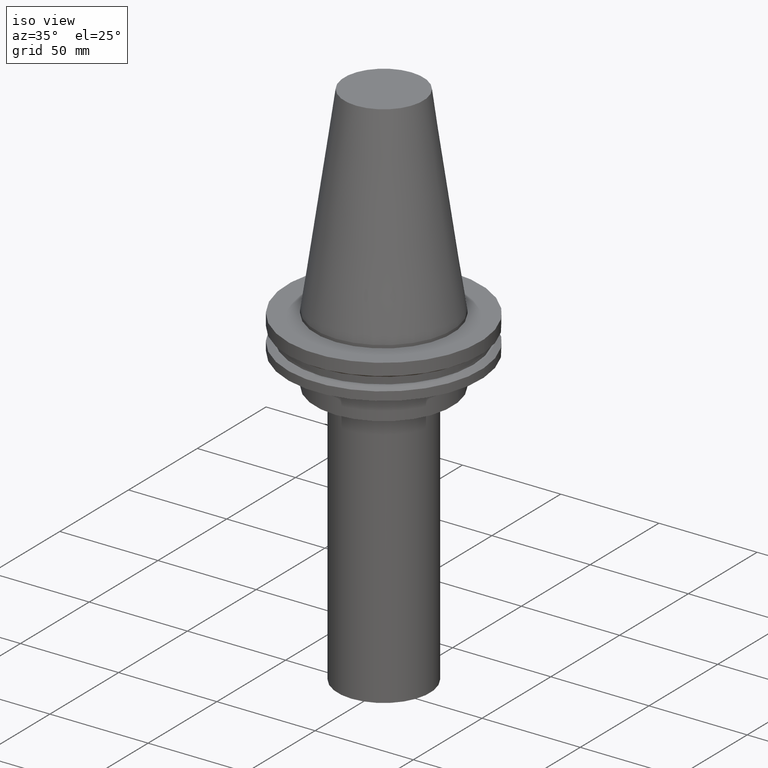
[diagram: clean part render]
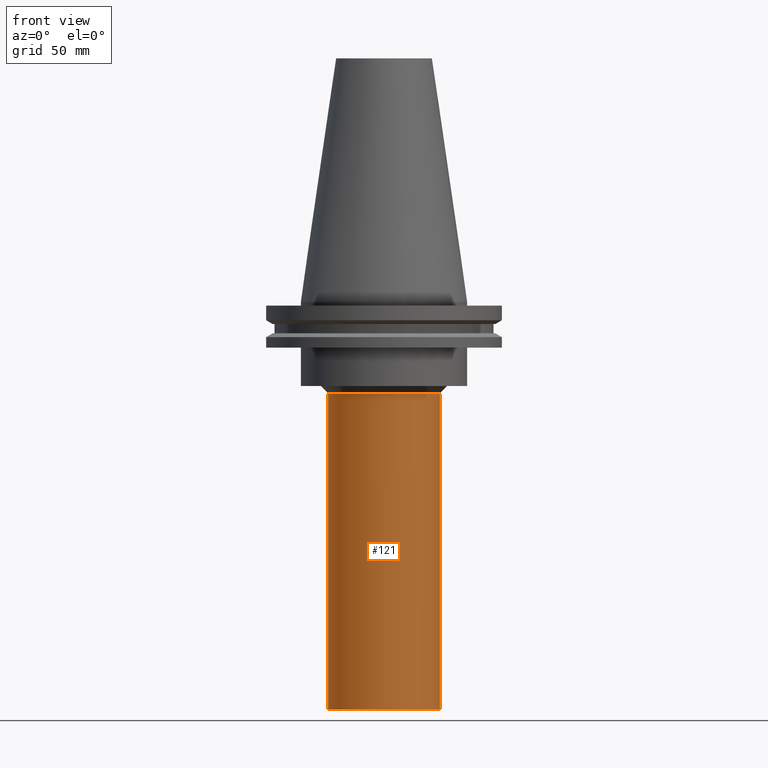
[diagram: tour spotlight — one face highlighted and labeled with its STEP entity id]
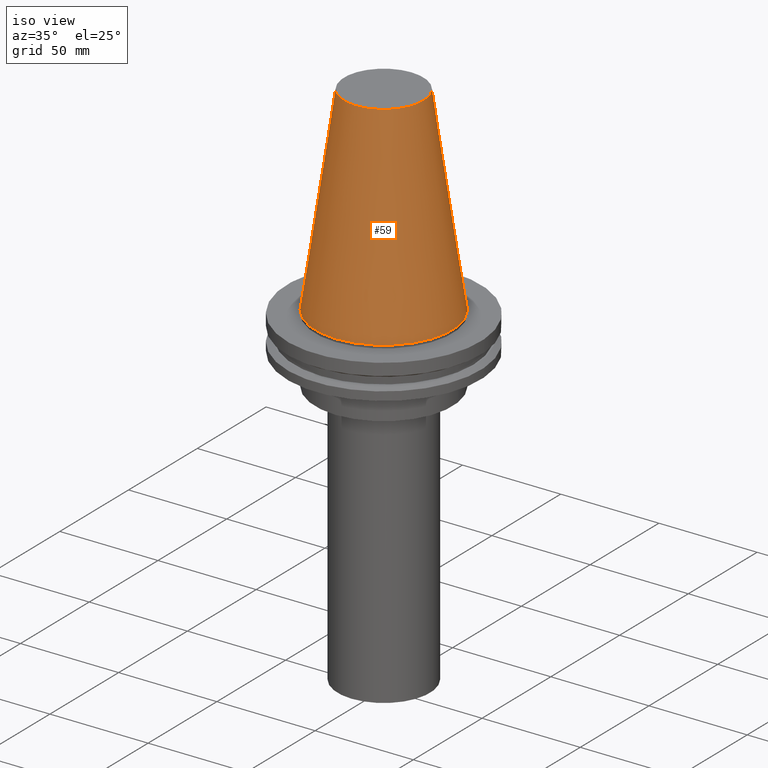
[diagram: tour spotlight — one face highlighted and labeled with its STEP entity id]
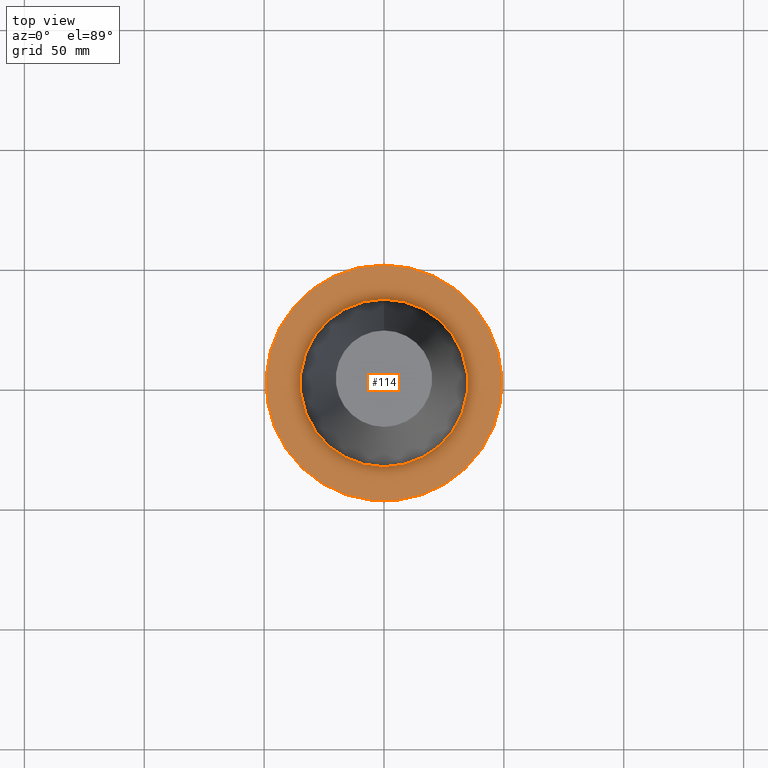
[diagram: tour spotlight — one face highlighted and labeled with its STEP entity id]
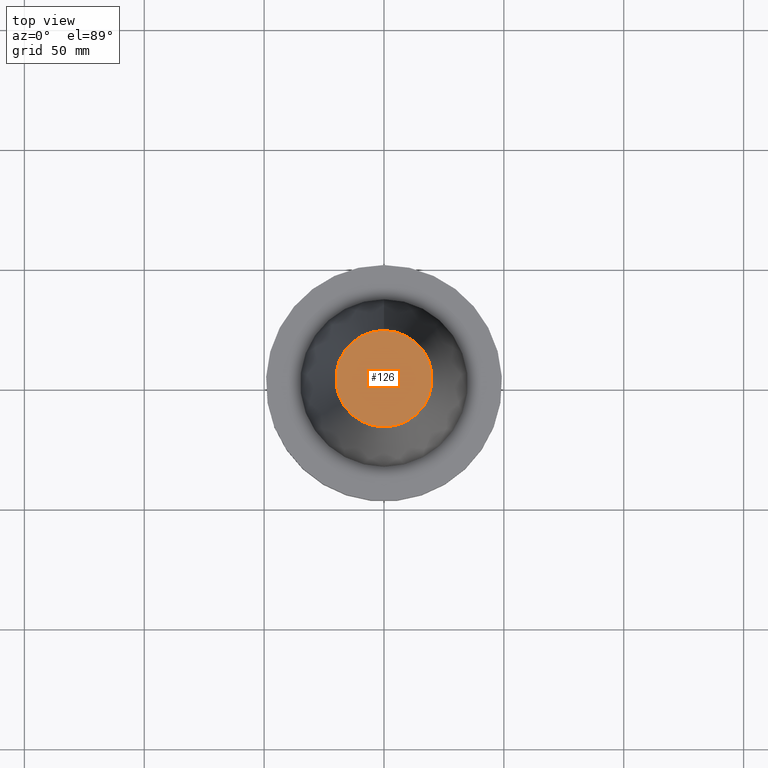
[diagram: tour spotlight — one face highlighted and labeled with its STEP entity id]
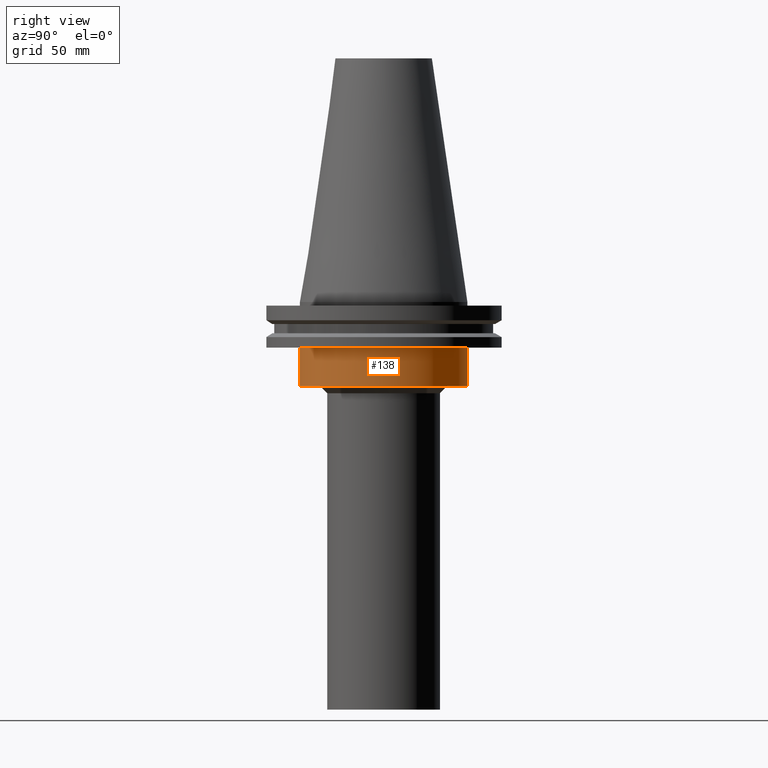
[diagram: tour spotlight — one face highlighted and labeled with its STEP entity id]
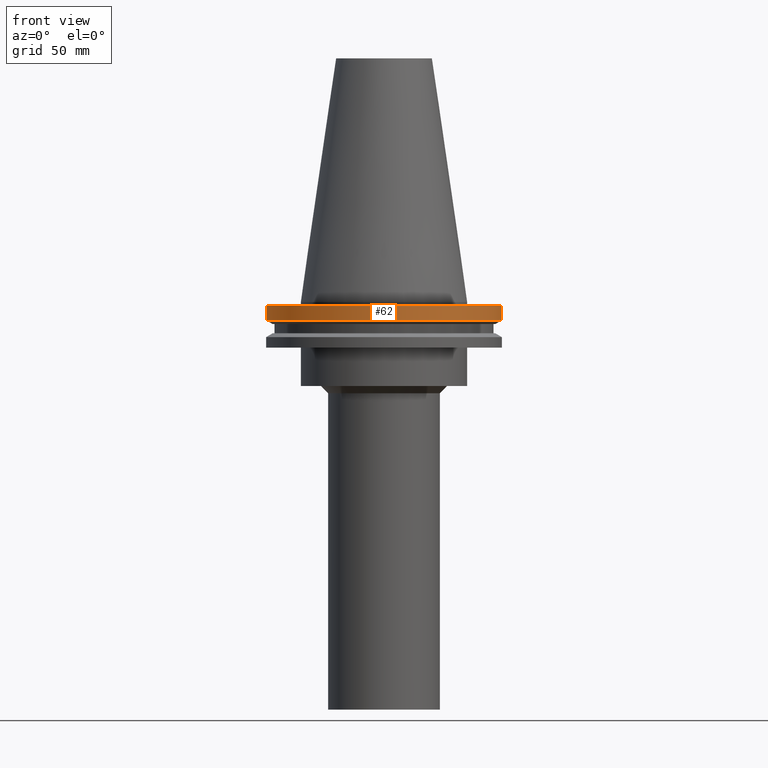
[diagram: tour spotlight — one face highlighted and labeled with its STEP entity id]
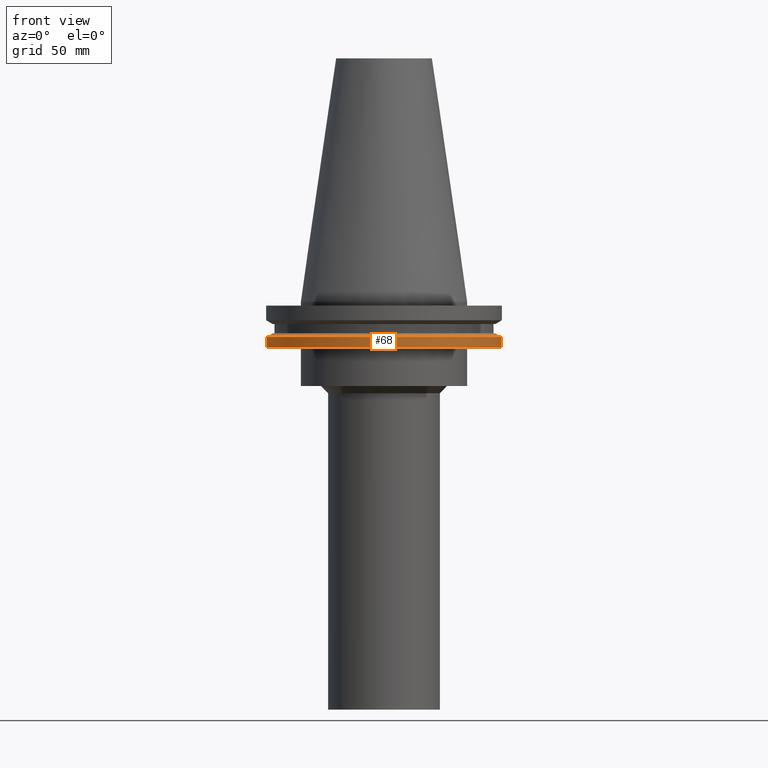
[diagram: tour spotlight — one face highlighted and labeled with its STEP entity id]
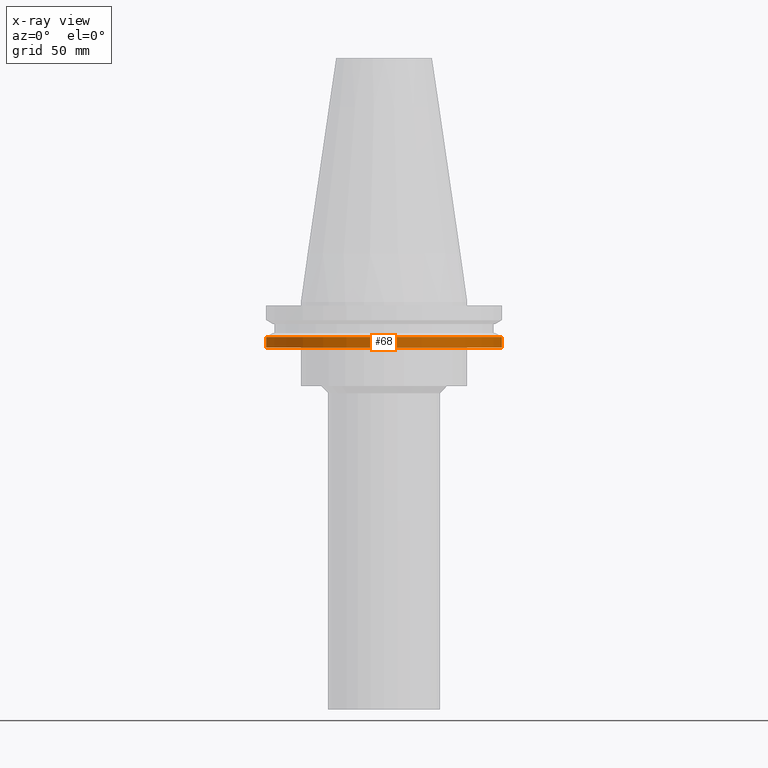
[diagram: x-ray of the same camera — body ghosted, this tour face saturated]
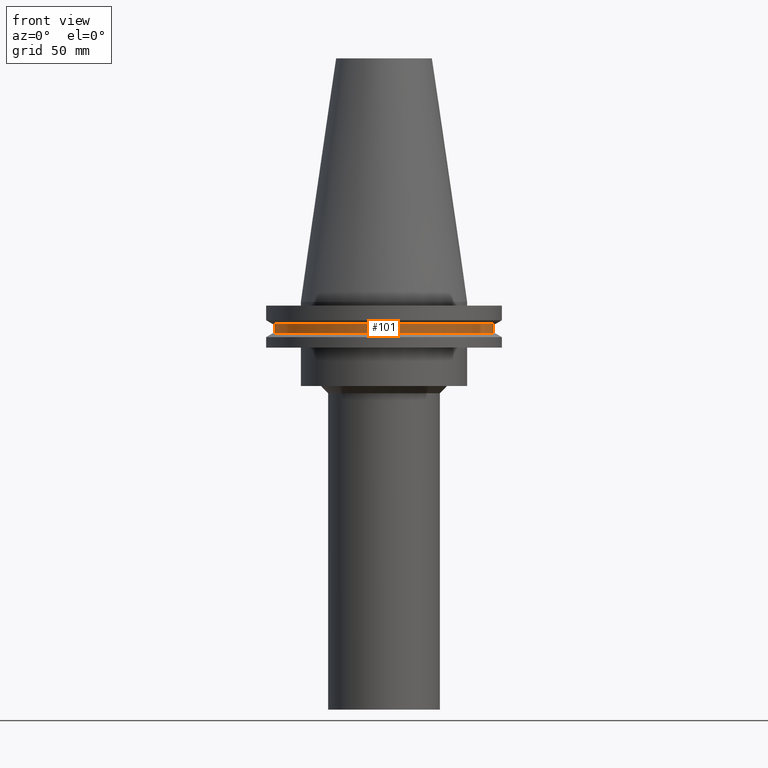
[diagram: tour spotlight — one face highlighted and labeled with its STEP entity id]
A machine part: a face-by-face anatomy tour. The part has 17 B-rep faces; the first image is the clean iso view, then the 8 largest visible faces are spotlighted one at a time (largest first), each with its STEP entity span.

Face 1 — front view, entity #121. In plain terms, the highlighted cylindrical surface (bore or boss wall) has radius 23.5 mm, axis along (0, 0, -1).
Definition (entity closure, byte-faithful):
#121=ADVANCED_FACE('Unnamed[1]',(#257,#258),#259,.T.);
#123=EDGE_CURVE('Unnamed[1]',#261,#261,#262,.T.);
#142=EDGE_CURVE('Unnamed[1]',#291,#291,#292,.T.);
#257=FACE_BOUND('',#422,.T.);
#258=FACE_BOUND('',#423,.T.);
#259=CYLINDRICAL_SURFACE('',#424,23.5000000000002);
#261=VERTEX_POINT('',#427);
#262=CIRCLE('',#428,23.5000000000005);
#291=VERTEX_POINT('',#464);
#292=CIRCLE('',#465,23.5);
#422=EDGE_LOOP('',(#573));
#423=EDGE_LOOP('',(#574));
#424=AXIS2_PLACEMENT_3D('',#575,#576,#577);
#427=CARTESIAN_POINT('',(1.04094977927524E-014,23.5000000000005,-169.999999999999));
#428=AXIS2_PLACEMENT_3D('',#578,#579,#580);
#464=CARTESIAN_POINT('',(2.32989053537784E-015,23.5,-38.05));
#465=AXIS2_PLACEMENT_3D('',#613,#614,#615);
#573=ORIENTED_EDGE('',*,*,#123,.F.);
#574=ORIENTED_EDGE('',*,*,#142,.T.);
#575=CARTESIAN_POINT('',(6.36969416406514E-015,3.1361597384021E-014,-104.024999999999));
#576=DIRECTION('',(6.12323399573677E-017,4.82717484294155E-016,-1.0));
#577=DIRECTION('',(-3.4385073832434E-032,1.0,4.82717484294155E-016));
#578=CARTESIAN_POINT('',(1.04094977927524E-014,6.32088834103277E-014,-169.999999999999));
#579=DIRECTION('',(6.12323399573677E-017,4.82717484294155E-016,-1.0));
#580=DIRECTION('',(-3.4385073832434E-032,1.0,4.82717484294155E-016));
#613=CARTESIAN_POINT('',(2.32989053537784E-015,-4.856886422856E-016,-38.05));
#614=DIRECTION('',(6.12323399573677E-017,4.82717484294155E-016,-1.0));
#615=DIRECTION('',(-3.4385073832434E-032,1.0,4.82717484294155E-016));

Face 2 — iso view, entity #59. In plain terms, the highlighted conical surface has half-angle 8.297 deg.
Definition (entity closure, byte-faithful):
#59=ADVANCED_FACE('Unnamed[1]',(#161,#162),#163,.T.);
#70=EDGE_CURVE('Unnamed[1]',#180,#180,#181,.T.);
#74=EDGE_CURVE('Unnamed[1]',#186,#186,#187,.T.);
#161=FACE_BOUND('',#302,.T.);
#162=FACE_BOUND('',#303,.T.);
#163=CONICAL_SURFACE('',#304,27.5166666666667,0.144812498238939);
#180=VERTEX_POINT('',#325);
#181=CIRCLE('',#326,20.1083333333333);
#186=VERTEX_POINT('',#333);
#187=CIRCLE('',#334,34.925);
#302=EDGE_LOOP('',(#468));
#303=EDGE_LOOP('',(#469));
#304=AXIS2_PLACEMENT_3D('',#470,#471,#472);
#325=CARTESIAN_POINT('',(-6.22120573966855E-015,20.1083333333332,101.6));
#326=AXIS2_PLACEMENT_3D('',#491,#492,#493);
#333=CARTESIAN_POINT('',(4.82986938111671E-029,34.925,-7.9153078510529E-013));
#334=AXIS2_PLACEMENT_3D('',#497,#498,#499);
#468=ORIENTED_EDGE('',*,*,#74,.F.);
#469=ORIENTED_EDGE('',*,*,#70,.T.);
#470=CARTESIAN_POINT('',(-3.11060286983425E-015,-4.33751371218211E-014,50.7999999999996));
#471=DIRECTION('',(6.12323399573677E-017,4.82717484294155E-016,-1.0));
#472=DIRECTION('',(-3.4385073832434E-032,1.0,4.82717484294155E-016));
#491=CARTESIAN_POINT('',(-6.22120573966855E-015,-6.78971853239644E-014,101.6));
#492=DIRECTION('',(6.12323399573677E-017,4.82717484294155E-016,-1.0));
#493=DIRECTION('',(-3.4385073832434E-032,1.0,4.82717484294155E-016));
#497=CARTESIAN_POINT('',(4.87291776723366E-029,-1.88530889196778E-014,-7.95807864051312E-013));
#498=DIRECTION('',(6.12323399573677E-017,4.82717484294155E-016,-1.0));
#499=DIRECTION('',(-3.4385073832434E-032,1.0,4.82717484294155E-016));

Face 3 — top view, entity #114. In plain terms, the highlighted planar face has unit normal (-0, -0, 1).
Definition (entity closure, byte-faithful):
#105=EDGE_CURVE('Unnamed[1]',#233,#233,#234,.T.);
#109=EDGE_CURVE('Unnamed[1]',#239,#239,#240,.T.);
#114=ADVANCED_FACE('Unnamed[1]',(#246,#247),#248,.T.);
#233=VERTEX_POINT('',#391);
#234=CIRCLE('',#392,49.2124999999999);
#239=VERTEX_POINT('',#399);
#240=CIRCLE('',#400,34.925);
#246=FACE_OUTER_BOUND('',#408,.T.);
#247=FACE_BOUND('',#409,.T.);
#248=PLANE('',#410);
#391=CARTESIAN_POINT('',(9.18485099360509E-017,49.2124999999999,-1.49999999999999));
#392=AXIS2_PLACEMENT_3D('',#548,#549,#550);
#399=CARTESIAN_POINT('',(9.18485099360511E-017,34.925,-1.5));
#400=AXIS2_PLACEMENT_3D('',#554,#555,#556);
#408=EDGE_LOOP('',(#561));
#409=EDGE_LOOP('',(#562));
#410=AXIS2_PLACEMENT_3D('',#563,#564,#565);
#548=CARTESIAN_POINT('',(9.18485099360532E-017,-1.81290126932369E-014,-1.50000000000003));
#549=DIRECTION('',(6.12323399573677E-017,4.82717484294155E-016,-1.0));
#550=DIRECTION('',(-3.4385073832434E-032,1.0,4.82717484294155E-016));
#554=CARTESIAN_POINT('',(9.18485099360515E-017,-1.81290126932369E-014,-1.5));
#555=DIRECTION('',(6.12323399573677E-017,4.82717484294155E-016,-1.0));
#556=DIRECTION('',(-3.4385073832434E-032,1.0,4.82717484294155E-016));
#561=ORIENTED_EDGE('',*,*,#105,.F.);
#562=ORIENTED_EDGE('',*,*,#109,.T.);
#563=CARTESIAN_POINT('',(9.1848509936051E-017,42.0687499999999,-1.49999999999999));
#564=DIRECTION('',(-6.12323399573677E-017,-1.22464679914735E-016,1.0));
#565=DIRECTION('',(1.23259516440783E-032,-1.0,-1.22464679914735E-016));

Face 4 — top view, entity #126. In plain terms, the highlighted planar face has unit normal (-0, -0, 1).
Definition (entity closure, byte-faithful):
#70=EDGE_CURVE('Unnamed[1]',#180,#180,#181,.T.);
#126=ADVANCED_FACE('Unnamed[1]',(#265),#266,.T.);
#180=VERTEX_POINT('',#325);
#181=CIRCLE('',#326,20.1083333333333);
#265=FACE_OUTER_BOUND('',#432,.T.);
#266=PLANE('',#433);
#325=CARTESIAN_POINT('',(-6.22120573966855E-015,20.1083333333332,101.6));
#326=AXIS2_PLACEMENT_3D('',#491,#492,#493);
#432=EDGE_LOOP('',(#582));
#433=AXIS2_PLACEMENT_3D('',#583,#584,#585);
#491=CARTESIAN_POINT('',(-6.22120573966855E-015,-6.78971853239644E-014,101.6));
#492=DIRECTION('',(6.12323399573677E-017,4.82717484294155E-016,-1.0));
#493=DIRECTION('',(-3.4385073832434E-032,1.0,4.82717484294155E-016));
#582=ORIENTED_EDGE('',*,*,#70,.F.);
#583=CARTESIAN_POINT('',(-6.22120573966855E-015,10.0541666666666,101.6));
#584=DIRECTION('',(-6.12323399573677E-017,-1.22464679914735E-016,1.0));
#585=DIRECTION('',(1.23259516440783E-032,-1.0,-1.22464679914735E-016));

Face 5 — right view, entity #138. In plain terms, the highlighted cylindrical surface (bore or boss wall) has radius 34.925 mm, axis along (0, 0, -1).
Definition (entity closure, byte-faithful):
#98=EDGE_CURVE('Unnamed[1]',#222,#222,#223,.T.);
#111=EDGE_CURVE('Unnamed[1]',#242,#242,#243,.T.);
#138=ADVANCED_FACE('Unnamed[1]',(#284,#285),#286,.T.);
#222=VERTEX_POINT('',#377);
#223=CIRCLE('',#378,34.925);
#242=VERTEX_POINT('',#403);
#243=CIRCLE('',#404,34.925);
#284=FACE_BOUND('',#455,.T.);
#285=FACE_BOUND('',#456,.T.);
#286=CYLINDRICAL_SURFACE('',#457,34.925);
#377=CARTESIAN_POINT('',(1.16647607618786E-015,34.925,-19.0500000000001));
#378=AXIS2_PLACEMENT_3D('',#536,#537,#538);
#403=CARTESIAN_POINT('',(2.14619351550573E-015,34.925,-35.0499999999999));
#404=AXIS2_PLACEMENT_3D('',#557,#558,#559);
#455=EDGE_LOOP('',(#605));
#456=EDGE_LOOP('',(#606));
#457=AXIS2_PLACEMENT_3D('',#607,#608,#609);
#536=CARTESIAN_POINT('',(1.16647607618786E-015,-9.6573208438745E-015,-19.0500000000001));
#537=DIRECTION('',(6.12323399573677E-017,4.82717484294155E-016,-1.0));
#538=DIRECTION('',(-3.4385073832434E-032,1.0,4.82717484294155E-016));
#557=CARTESIAN_POINT('',(2.14619351550573E-015,-1.93384109516807E-015,-35.05));
#558=DIRECTION('',(6.12323399573676E-017,4.82717484294155E-016,-1.0));
#559=DIRECTION('',(-3.4385073832434E-032,1.0,4.82717484294155E-016));
#605=ORIENTED_EDGE('',*,*,#111,.F.);
#606=ORIENTED_EDGE('',*,*,#98,.T.);
#607=CARTESIAN_POINT('',(1.6563347958468E-015,-5.79558096952128E-015,-27.05));
#608=DIRECTION('',(6.12323399573676E-017,4.82717484294155E-016,-1.0));
#609=DIRECTION('',(-3.4385073832434E-032,1.0,4.82717484294155E-016));

Face 6 — front view, entity #62. In plain terms, the highlighted cylindrical surface (bore or boss wall) has radius 49.2125 mm, axis along (0, 0, -1).
Definition (entity closure, byte-faithful):
#62=ADVANCED_FACE('Unnamed[1]',(#166,#167),#168,.T.);
#72=EDGE_CURVE('Unnamed[1]',#183,#183,#184,.T.);
#105=EDGE_CURVE('Unnamed[1]',#233,#233,#234,.T.);
#166=FACE_BOUND('',#308,.T.);
#167=FACE_BOUND('',#309,.T.);
#168=CYLINDRICAL_SURFACE('',#310,49.2125);
#183=VERTEX_POINT('',#329);
#184=CIRCLE('',#330,49.2125000000001);
#233=VERTEX_POINT('',#391);
#234=CIRCLE('',#392,49.2124999999999);
#308=EDGE_LOOP('',(#474));
#309=EDGE_LOOP('',(#475));
#310=AXIS2_PLACEMENT_3D('',#476,#477,#478);
#329=CARTESIAN_POINT('',(4.65059621976208E-016,49.2125,-7.59500000000002));
#330=AXIS2_PLACEMENT_3D('',#494,#495,#496);
#391=CARTESIAN_POINT('',(9.18485099360509E-017,49.2124999999999,-1.49999999999999));
#392=AXIS2_PLACEMENT_3D('',#548,#549,#550);
#474=ORIENTED_EDGE('',*,*,#72,.F.);
#475=ORIENTED_EDGE('',*,*,#105,.T.);
#476=CARTESIAN_POINT('',(2.78454065956132E-016,-1.66579311598505E-014,-4.54750000000004));
#477=DIRECTION('',(6.12323399573677E-017,4.82717484294155E-016,-1.0));
#478=DIRECTION('',(-3.4385073832434E-032,1.0,4.82717484294155E-016));
#494=CARTESIAN_POINT('',(4.65059621976211E-016,-1.51868496264641E-014,-7.59500000000006));
#495=DIRECTION('',(6.12323399573676E-017,4.82717484294155E-016,-1.0));
#496=DIRECTION('',(-3.4385073832434E-032,1.0,4.82717484294155E-016));
#548=CARTESIAN_POINT('',(9.18485099360532E-017,-1.81290126932369E-014,-1.50000000000003));
#549=DIRECTION('',(6.12323399573677E-017,4.82717484294155E-016,-1.0));
#550=DIRECTION('',(-3.4385073832434E-032,1.0,4.82717484294155E-016));

Face 7 — front view, entity #68. An x-ray twin of the same camera follows (body ghosted, this face saturated) — the face is partly hidden behind the body. In plain terms, the highlighted cylindrical surface (bore or boss wall) has radius 49.2125 mm, axis along (0, 0, -1).
Definition (entity closure, byte-faithful):
#68=ADVANCED_FACE('Unnamed[1]',(#176,#177),#178,.T.);
#88=EDGE_CURVE('Unnamed[1]',#206,#206,#207,.T.);
#103=EDGE_CURVE('Unnamed[1]',#230,#230,#231,.T.);
#176=FACE_BOUND('',#320,.T.);
#177=FACE_BOUND('',#321,.T.);
#178=CYLINDRICAL_SURFACE('',#322,49.2124999999999);
#206=VERTEX_POINT('',#357);
#207=CIRCLE('',#358,49.2124999999999);
#230=VERTEX_POINT('',#387);
#231=CIRCLE('',#388,49.2124999999999);
#320=EDGE_LOOP('',(#486));
#321=EDGE_LOOP('',(#487));
#322=AXIS2_PLACEMENT_3D('',#488,#489,#490);
#357=CARTESIAN_POINT('',(1.16647607618786E-015,49.2124999999999,-19.0500000000001));
#358=AXIS2_PLACEMENT_3D('',#518,#519,#520);
#387=CARTESIAN_POINT('',(8.96747618675648E-016,49.2124999999999,-14.645));
#388=AXIS2_PLACEMENT_3D('',#545,#546,#547);
#486=ORIENTED_EDGE('',*,*,#88,.F.);
#487=ORIENTED_EDGE('',*,*,#103,.T.);
#488=CARTESIAN_POINT('',(1.03161184743175E-015,-1.07205061030324E-014,-16.8475000000001));
#489=DIRECTION('',(6.12323399573676E-017,4.82717484294155E-016,-1.0));
#490=DIRECTION('',(-3.4385073832434E-032,1.0,4.82717484294155E-016));
#518=CARTESIAN_POINT('',(1.16647607618786E-015,-9.65732084387448E-015,-19.0500000000001));
#519=DIRECTION('',(6.12323399573676E-017,4.82717484294155E-016,-1.0));
#520=DIRECTION('',(-3.4385073832434E-032,1.0,4.82717484294155E-016));
#545=CARTESIAN_POINT('',(8.9674761867565E-016,-1.17836913621903E-014,-14.645));
#546=DIRECTION('',(6.12323399573676E-017,4.82717484294155E-016,-1.0));
#547=DIRECTION('',(-3.4385073832434E-032,1.0,4.82717484294155E-016));

Face 8 — front view, entity #101. In plain terms, the highlighted cylindrical surface (bore or boss wall) has radius 45.645 mm, axis along (0, 0, -1).
Definition (entity closure, byte-faithful):
#101=ADVANCED_FACE('Unnamed[1]',(#226,#227),#228,.T.);
#116=EDGE_CURVE('Unnamed[1]',#250,#250,#251,.T.);
#140=EDGE_CURVE('Unnamed[1]',#288,#288,#289,.T.);
#226=FACE_BOUND('',#382,.T.);
#227=FACE_BOUND('',#383,.T.);
#228=CYLINDRICAL_SURFACE('',#384,45.6449999999999);
#250=VERTEX_POINT('',#413);
#251=CIRCLE('',#414,45.6449999999999);
#288=VERTEX_POINT('',#460);
#289=CIRCLE('',#461,45.6449999999999);
#382=EDGE_LOOP('',(#540));
#383=EDGE_LOOP('',(#541));
#384=AXIS2_PLACEMENT_3D('',#542,#543,#544);
#413=CARTESIAN_POINT('',(7.98469713044071E-016,45.6449999999999,-13.04));
#414=AXIS2_PLACEMENT_3D('',#566,#567,#568);
#460=CARTESIAN_POINT('',(5.63337527607778E-016,45.6449999999999,-9.19999999999993));
#461=AXIS2_PLACEMENT_3D('',#610,#611,#612);
#540=ORIENTED_EDGE('',*,*,#116,.F.);
#541=ORIENTED_EDGE('',*,*,#140,.T.);
#542=CARTESIAN_POINT('',(6.80903620325927E-016,-1.34852704943272E-014,-11.12));
#543=DIRECTION('',(6.12323399573677E-017,4.82717484294155E-016,-1.0));
#544=DIRECTION('',(-3.4385073832434E-032,1.0,4.82717484294155E-016));
#566=CARTESIAN_POINT('',(7.98469713044074E-016,-1.25584529244824E-014,-13.04));
#567=DIRECTION('',(6.12323399573677E-017,4.82717484294155E-016,-1.0));
#568=DIRECTION('',(-3.4385073832434E-032,1.0,4.82717484294155E-016));
#610=CARTESIAN_POINT('',(5.6333752760778E-016,-1.4412088064172E-014,-9.19999999999996));
#611=DIRECTION('',(6.12323399573677E-017,4.82717484294155E-016,-1.0));
#612=DIRECTION('',(-3.4385073832434E-032,1.0,4.82717484294155E-016));